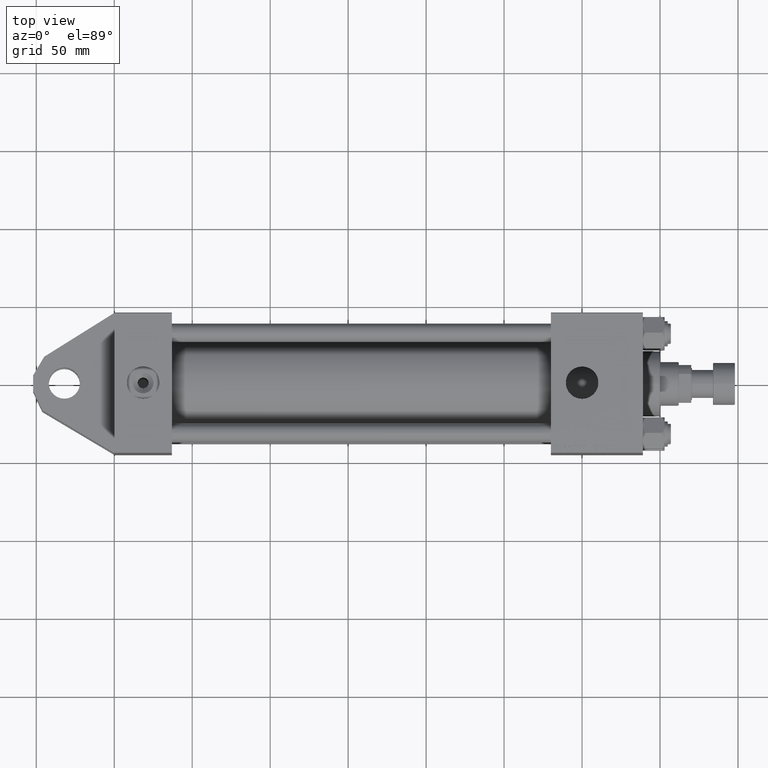
[diagram: clean part render]
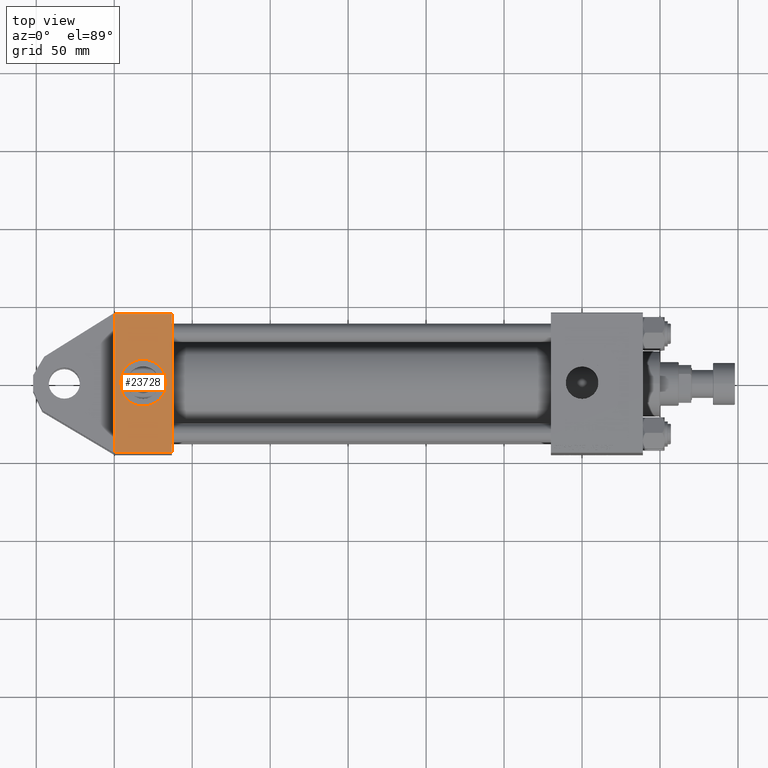
[diagram: same view with one face highlighted and labeled with its STEP entity id]
A machine part, top view. The second image highlights one B-rep face of the part: STEP entity #23728.
In plain terms, the highlighted planar face has unit normal (0, 0, -1).
Its self-contained STEP definition (entity closure, byte-faithful):
#319 = FACE_BOUND ( 'NONE', #3331, .T. ) ;
#822 = DIRECTION ( 'NONE',  ( 1.000000000000000000, 0.000000000000000000, 0.000000000000000000 ) ) ;
#2185 = CARTESIAN_POINT ( 'NONE',  ( 18.50000000000000000, -45.00000000000000000, -15.00000000000000533 ) ) ;
#2382 = VERTEX_POINT ( 'NONE', #2185 ) ;
#2553 = VECTOR ( 'NONE', #822, 1000.000000000000000 ) ;
#3331 = EDGE_LOOP ( 'NONE', ( #40614, #43752 ) ) ;
#4130 = CARTESIAN_POINT ( 'NONE',  ( 0.000000000000000000, -45.00000000000000000, -44.49999999999995737 ) ) ;
#4505 = VERTEX_POINT ( 'NONE', #18742 ) ;
#5807 = LINE ( 'NONE', #21920, #36575 ) ;
#6839 = CARTESIAN_POINT ( 'NONE',  ( 18.50000000000000000, -45.00000000000000000, -3.469446951953614978E-15 ) ) ;
#7167 = DIRECTION ( 'NONE',  ( 0.000000000000000000, -1.000000000000000000, -8.673617379884036705E-17 ) ) ;
#7535 = VERTEX_POINT ( 'NONE', #24405 ) ;
#7875 = DIRECTION ( 'NONE',  ( 0.000000000000000000, 7.709882115452476934E-17, -1.000000000000000000 ) ) ;
#8492 = CARTESIAN_POINT ( 'NONE',  ( 37.00000000000000000, -45.00000000000000711, 45.00000000000000000 ) ) ;
#10869 = CARTESIAN_POINT ( 'NONE',  ( 18.50000000000000000, -45.00000000000000000, -3.469446951953614978E-15 ) ) ;
#10993 = CARTESIAN_POINT ( 'NONE',  ( 37.00000000000000000, -45.00000000000000711, 45.00000000000000000 ) ) ;
#11154 = CARTESIAN_POINT ( 'NONE',  ( 18.50000000000000355, -45.00000000000000000, 14.99999999999999822 ) ) ;
#12995 = FACE_OUTER_BOUND ( 'NONE', #13064, .T. ) ;
#13064 = EDGE_LOOP ( 'NONE', ( #24605, #40862, #43251, #41181 ) ) ;
#13746 = AXIS2_PLACEMENT_3D ( 'NONE', #10869, #7167, #27002 ) ;
#13900 = CIRCLE ( 'NONE', #38374, 15.00000000000000178 ) ;
#14650 = VERTEX_POINT ( 'NONE', #4130 ) ;
#15743 = DIRECTION ( 'NONE',  ( 0.000000000000000000, 7.709882115452476934E-17, -1.000000000000000000 ) ) ;
#16950 = DIRECTION ( 'NONE',  ( -0.000000000000000000, 1.000000000000000000, 7.709882115452478166E-17 ) ) ;
#17966 = AXIS2_PLACEMENT_3D ( 'NONE', #8492, #16950, #40224 ) ;
#18742 = CARTESIAN_POINT ( 'NONE',  ( 0.000000000000000000, -45.00000000000000711, 44.49999999999997158 ) ) ;
#20110 = LINE ( 'NONE', #33314, #2553 ) ;
#20177 = VERTEX_POINT ( 'NONE', #27710 ) ;
#21920 = CARTESIAN_POINT ( 'NONE',  ( 37.00000000000000000, -45.00000000000000711, 44.49999999999997158 ) ) ;
#23728 = ADVANCED_FACE ( 'NONE', ( #319, #12995 ), #37042, .F. ) ;
#24405 = CARTESIAN_POINT ( 'NONE',  ( 37.00000000000000000, -45.00000000000000711, 44.49999999999997158 ) ) ;
#24605 = ORIENTED_EDGE ( 'NONE', *, *, #39206, .T. ) ;
#25084 = EDGE_CURVE ( 'NONE', #7535, #4505, #5807, .T. ) ;
#27002 = DIRECTION ( 'NONE',  ( 0.000000000000000000, 0.000000000000000000, -1.000000000000000000 ) ) ;
#27710 = CARTESIAN_POINT ( 'NONE',  ( 37.00000000000000000, -45.00000000000000000, -44.49999999999995737 ) ) ;
#33314 = CARTESIAN_POINT ( 'NONE',  ( 37.00000000000000000, -45.00000000000000000, -44.49999999999998579 ) ) ;
#33824 = DIRECTION ( 'NONE',  ( -1.000000000000000000, 0.000000000000000000, 0.000000000000000000 ) ) ;
#36575 = VECTOR ( 'NONE', #33824, 1000.000000000000000 ) ;
#37042 = PLANE ( 'NONE',  #17966 ) ;
#38374 = AXIS2_PLACEMENT_3D ( 'NONE', #6839, #39090, #41172 ) ;
#39090 = DIRECTION ( 'NONE',  ( 0.000000000000000000, -1.000000000000000000, -8.673617379884036705E-17 ) ) ;
#39206 = EDGE_CURVE ( 'NONE', #4505, #14650, #51771, .T. ) ;
#39776 = EDGE_CURVE ( 'NONE', #14650, #20177, #20110, .T. ) ;
#40224 = DIRECTION ( 'NONE',  ( 0.000000000000000000, -7.709882115452478166E-17, 1.000000000000000000 ) ) ;
#40614 = ORIENTED_EDGE ( 'NONE', *, *, #46262, .F. ) ;
#40621 = VERTEX_POINT ( 'NONE', #11154 ) ;
#40862 = ORIENTED_EDGE ( 'NONE', *, *, #39776, .T. ) ;
#41172 = DIRECTION ( 'NONE',  ( 0.000000000000000000, 0.000000000000000000, -1.000000000000000000 ) ) ;
#41181 = ORIENTED_EDGE ( 'NONE', *, *, #25084, .T. ) ;
#41751 = VECTOR ( 'NONE', #15743, 1000.000000000000000 ) ;
#43251 = ORIENTED_EDGE ( 'NONE', *, *, #50344, .F. ) ;
#43752 = ORIENTED_EDGE ( 'NONE', *, *, #50181, .F. ) ;
#44109 = CARTESIAN_POINT ( 'NONE',  ( 0.000000000000000000, -45.00000000000000711, 45.00000000000000000 ) ) ;
#45002 = CIRCLE ( 'NONE', #13746, 15.00000000000000178 ) ;
#46262 = EDGE_CURVE ( 'NONE', #2382, #40621, #45002, .T. ) ;
#47219 = LINE ( 'NONE', #10993, #41751 ) ;
#50181 = EDGE_CURVE ( 'NONE', #40621, #2382, #13900, .T. ) ;
#50344 = EDGE_CURVE ( 'NONE', #7535, #20177, #47219, .T. ) ;
#51771 = LINE ( 'NONE', #44109, #52307 ) ;
#52307 = VECTOR ( 'NONE', #7875, 1000.000000000000000 ) ;